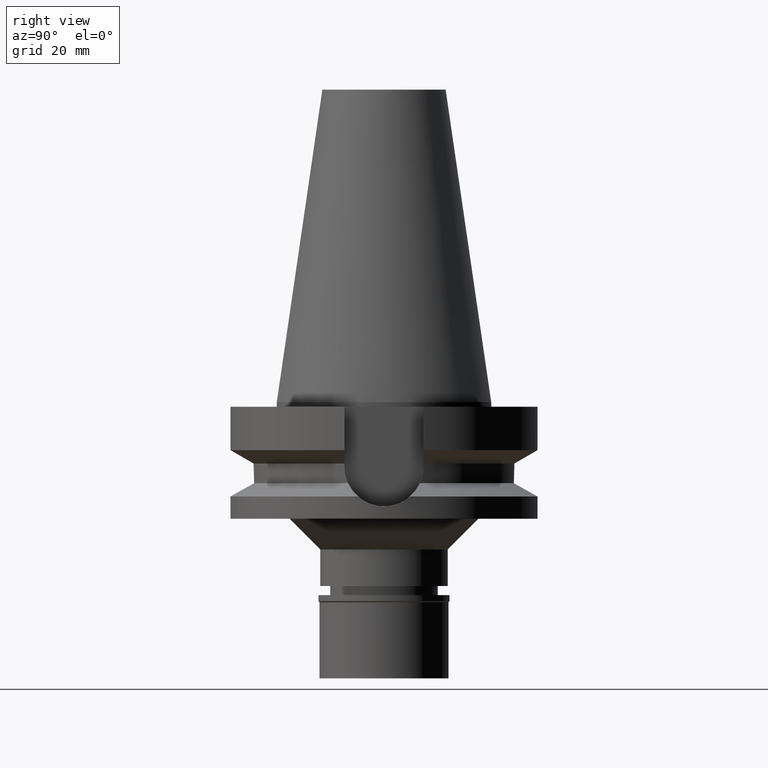
[diagram: clean part render]
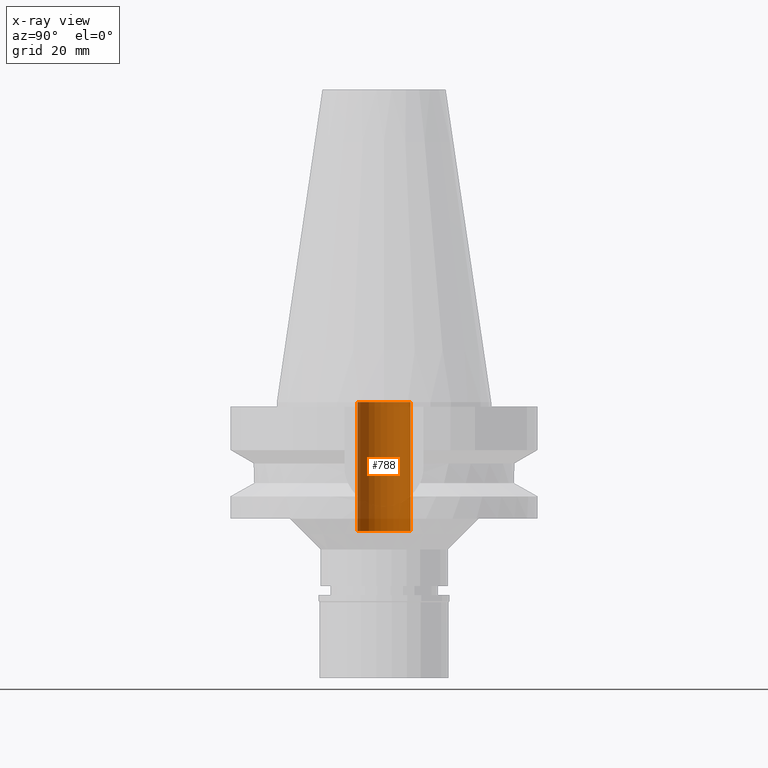
[diagram: x-ray — body ghosted, one internal face saturated and labeled with its STEP entity id]
A machine part, right view, then the same camera in x-ray: the body is ghosted and one INTERNAL B-rep face — a face not visible from any outside direction — is saturated and labeled: STEP entity #788.
In plain terms, the highlighted cylindrical surface (edge-blend (fillet) strip) has radius 8.65 mm, axis along (0, 0, -1).
Its self-contained STEP definition (entity closure, byte-faithful):
#17 = EDGE_CURVE ( 'NONE', #922, #1501, #837, .T. ) ;
#24 = CARTESIAN_POINT ( 'NONE',  ( 0.0000000000000000000, 2.582045311321999724E-14, -1.278976924367999843E-13 ) ) ;
#76 = CIRCLE ( 'NONE', #3002, 8.650000000000000355 ) ;
#95 = FACE_OUTER_BOUND ( 'NONE', #2197, .T. ) ;
#257 = CARTESIAN_POINT ( 'NONE',  ( 0.0000000000000000000, -8.650000000000000355, -42.00000000000000000 ) ) ;
#351 = CARTESIAN_POINT ( 'NONE',  ( 0.0000000000000000000, 8.650000000000000355, -42.00000000000000000 ) ) ;
#383 = EDGE_CURVE ( 'NONE', #2542, #922, #76, .T. ) ;
#409 = DIRECTION ( 'NONE',  ( 0.0000000000000000000, 0.0000000000000000000, 1.000000000000000000 ) ) ;
#577 = VECTOR ( 'NONE', #409, 1000.000000000000000 ) ;
#668 = CARTESIAN_POINT ( 'NONE',  ( 0.0000000000000000000, 8.650000000000000355, -42.00000000000000000 ) ) ;
#751 = CARTESIAN_POINT ( 'NONE',  ( 0.0000000000000000000, -8.650000000000000355, -42.00000000000000000 ) ) ;
#762 = CARTESIAN_POINT ( 'NONE',  ( 0.0000000000000000000, 2.582045311321999724E-14, -42.00000000000000000 ) ) ;
#788 = ADVANCED_FACE ( 'NONE', ( #95 ), #1543, .F. ) ;
#837 = LINE ( 'NONE', #351, #577 ) ;
#922 = VERTEX_POINT ( 'NONE', #668 ) ;
#1396 = EDGE_CURVE ( 'NONE', #1728, #1501, #2470, .T. ) ;
#1452 = DIRECTION ( 'NONE',  ( 0.0000000000000000000, -1.000000000000000000, 0.0000000000000000000 ) ) ;
#1481 = ORIENTED_EDGE ( 'NONE', *, *, #17, .T. ) ;
#1501 = VERTEX_POINT ( 'NONE', #2701 ) ;
#1512 = ORIENTED_EDGE ( 'NONE', *, *, #383, .T. ) ;
#1543 = CYLINDRICAL_SURFACE ( 'NONE', #1878, 8.650000000000000355 ) ;
#1671 = DIRECTION ( 'NONE',  ( 0.0000000000000000000, 0.0000000000000000000, -1.000000000000000000 ) ) ;
#1728 = VERTEX_POINT ( 'NONE', #1974 ) ;
#1780 = VECTOR ( 'NONE', #2857, 1000.000000000000000 ) ;
#1878 = AXIS2_PLACEMENT_3D ( 'NONE', #2003, #2474, #2968 ) ;
#1920 = DIRECTION ( 'NONE',  ( 0.0000000000000000000, 0.0000000000000000000, -1.000000000000000000 ) ) ;
#1974 = CARTESIAN_POINT ( 'NONE',  ( 0.0000000000000000000, -8.650000000000000355, -1.278976924367999843E-13 ) ) ;
#2003 = CARTESIAN_POINT ( 'NONE',  ( 0.0000000000000000000, 2.582045311321999724E-14, 110.8399999999999892 ) ) ;
#2068 = EDGE_CURVE ( 'NONE', #2542, #1728, #2873, .T. ) ;
#2197 = EDGE_LOOP ( 'NONE', ( #2256, #2465, #1512, #1481 ) ) ;
#2256 = ORIENTED_EDGE ( 'NONE', *, *, #1396, .F. ) ;
#2383 = DIRECTION ( 'NONE',  ( 0.0000000000000000000, -1.000000000000000000, 0.0000000000000000000 ) ) ;
#2465 = ORIENTED_EDGE ( 'NONE', *, *, #2068, .F. ) ;
#2470 = CIRCLE ( 'NONE', #2719, 8.650000000000000355 ) ;
#2474 = DIRECTION ( 'NONE',  ( 0.0000000000000000000, 0.0000000000000000000, -1.000000000000000000 ) ) ;
#2542 = VERTEX_POINT ( 'NONE', #257 ) ;
#2701 = CARTESIAN_POINT ( 'NONE',  ( 0.0000000000000000000, 8.650000000000000355, -1.278976924367999843E-13 ) ) ;
#2719 = AXIS2_PLACEMENT_3D ( 'NONE', #24, #1920, #2383 ) ;
#2857 = DIRECTION ( 'NONE',  ( 0.0000000000000000000, 0.0000000000000000000, 1.000000000000000000 ) ) ;
#2873 = LINE ( 'NONE', #751, #1780 ) ;
#2968 = DIRECTION ( 'NONE',  ( 0.0000000000000000000, -1.000000000000000000, 0.0000000000000000000 ) ) ;
#3002 = AXIS2_PLACEMENT_3D ( 'NONE', #762, #1671, #1452 ) ;